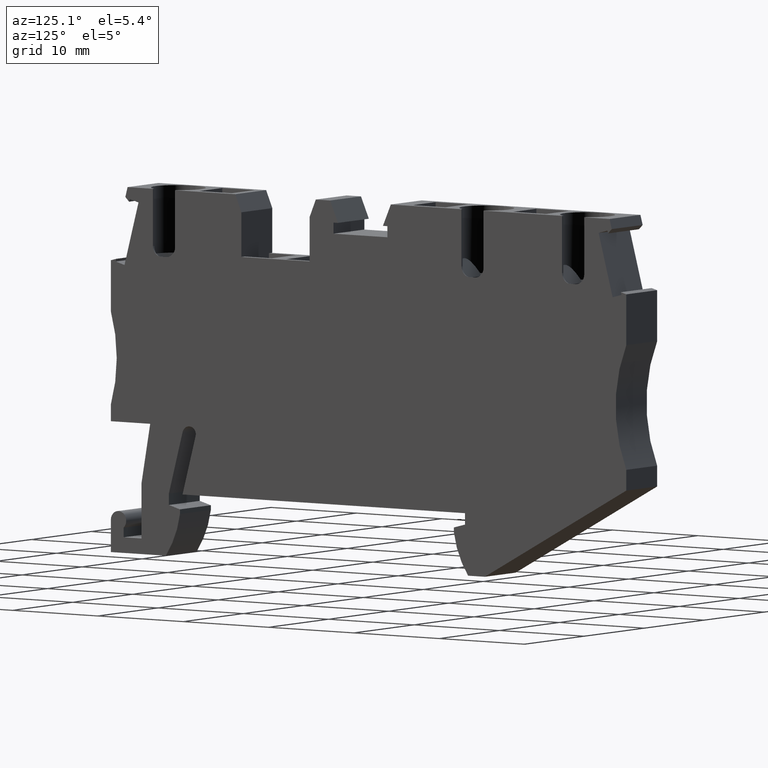
[diagram: clean part render]
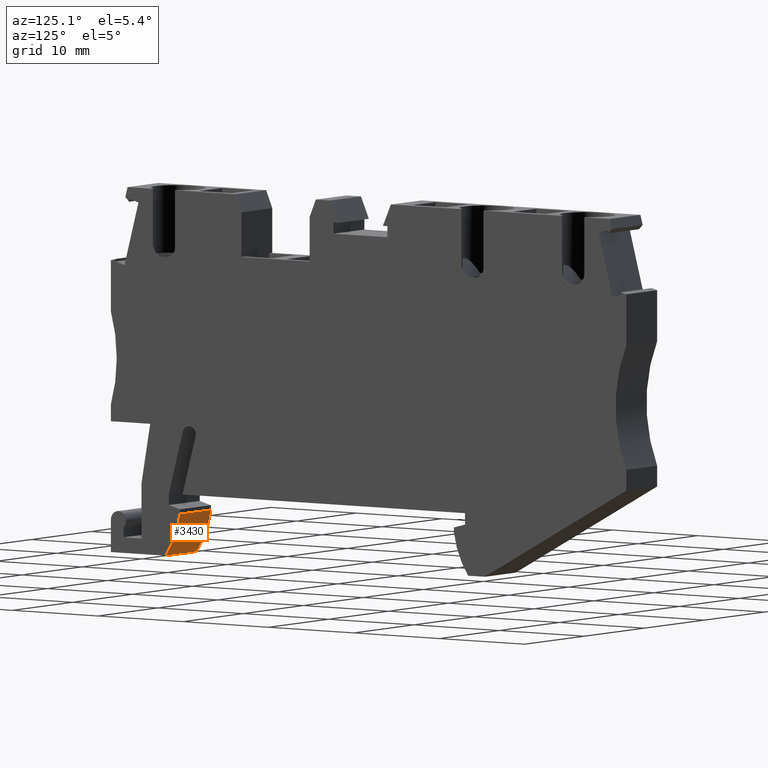
[diagram: same view with one face highlighted and labeled with its STEP entity id]
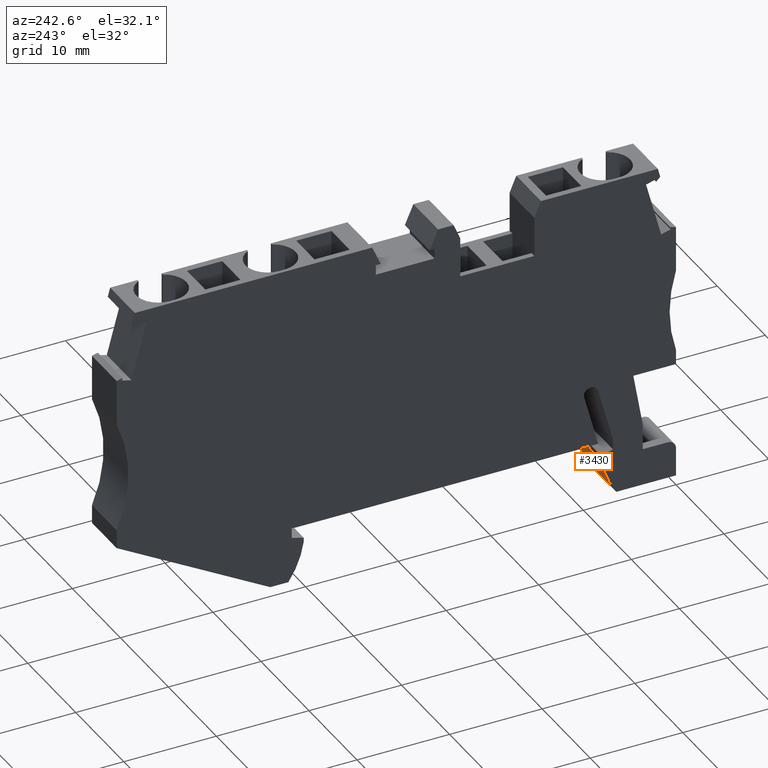
[diagram: same view with one face highlighted and labeled with its STEP entity id]
A machine part, auxiliary view. The second image highlights one B-rep face of the part: STEP entity #3430.
A second angle (auxiliary view) of the same face is appended — the face is thin or edge-on in the first view.
In plain terms, the highlighted cylindrical surface (partial cylindrical patch) has radius 9.5 mm, axis along (1, -0, 0).
Its self-contained STEP definition (entity closure, byte-faithful):
#3020=CARTESIAN_POINT('',(-23.6618054577009,-38.8846282117039,53.67));
#3030=DIRECTION('',(0.,0.,1.));
#3040=DIRECTION('',(1.,0.,0.));
#3050=AXIS2_PLACEMENT_3D('',#3020,#3030,#3040);
#3060=CYLINDRICAL_SURFACE('',#3050,9.499999999999);
#3070=CARTESIAN_POINT('',(-15.9267764314572,-44.4000000000015,53.67));
#3080=DIRECTION('',(0.,0.,-1.));
#3090=VECTOR('',#3080,1.);
#3100=LINE('',#3070,#3090);
#3110=CARTESIAN_POINT('',(-15.9267764314572,-44.4000000000014,53.67));
#3120=VERTEX_POINT('',#3110);
#3130=CARTESIAN_POINT('',(-15.9267764314572,-44.4000000000014,48.52));
#3140=VERTEX_POINT('',#3130);
#3150=EDGE_CURVE('',#3120,#3140,#3100,.T.);
#3160=ORIENTED_EDGE('',*,*,#3150,.T.);
#3170=CARTESIAN_POINT('',(-23.6618054577009,-38.8846282117039,53.67));
#3180=DIRECTION('',(0.,0.,1.));
#3190=DIRECTION('',(1.,0.,0.));
#3200=AXIS2_PLACEMENT_3D('',#3170,#3180,#3190);
#3210=CIRCLE('',#3200,9.499999999999);
#3220=CARTESIAN_POINT('',(-14.2678327783245,-40.3000000000024,53.67));
#3230=VERTEX_POINT('',#3220);
#3240=EDGE_CURVE('',#3120,#3230,#3210,.T.);
#3250=ORIENTED_EDGE('',*,*,#3240,.F.);
#3260=CARTESIAN_POINT('',(-14.2678327783248,-40.3000000000041,53.67));
#3270=DIRECTION('',(0.,0.,1.));
#3280=VECTOR('',#3270,1.);
#3290=LINE('',#3260,#3280);
#3300=CARTESIAN_POINT('',(-14.2678327783245,-40.3000000000023,48.52));
#3310=VERTEX_POINT('',#3300);
#3320=EDGE_CURVE('',#3310,#3230,#3290,.T.);
#3330=ORIENTED_EDGE('',*,*,#3320,.T.);
#3340=CARTESIAN_POINT('',(-23.6618054577009,-38.8846282117039,48.52));
#3350=DIRECTION('',(0.,0.,1.));
#3360=DIRECTION('',(1.,0.,0.));
#3370=AXIS2_PLACEMENT_3D('',#3340,#3350,#3360);
#3380=CIRCLE('',#3370,9.499999999999);
#3390=EDGE_CURVE('',#3140,#3310,#3380,.T.);
#3400=ORIENTED_EDGE('',*,*,#3390,.T.);
#3410=EDGE_LOOP('',(#3400,#3330,#3250,#3160));
#3420=FACE_OUTER_BOUND('',#3410,.T.);
#3430=ADVANCED_FACE('',(#3420),#3060,.T.);